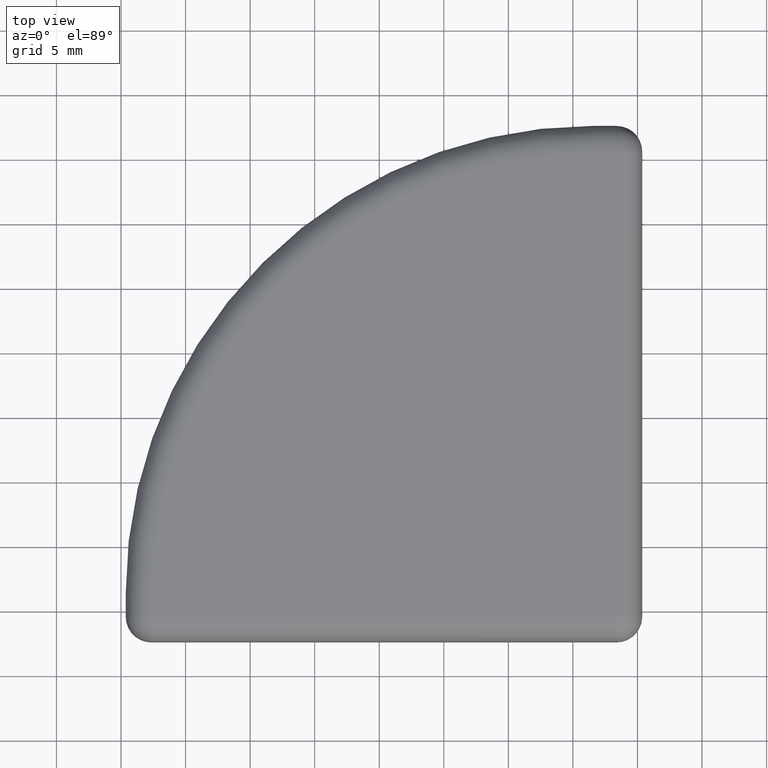
[diagram: clean part render]
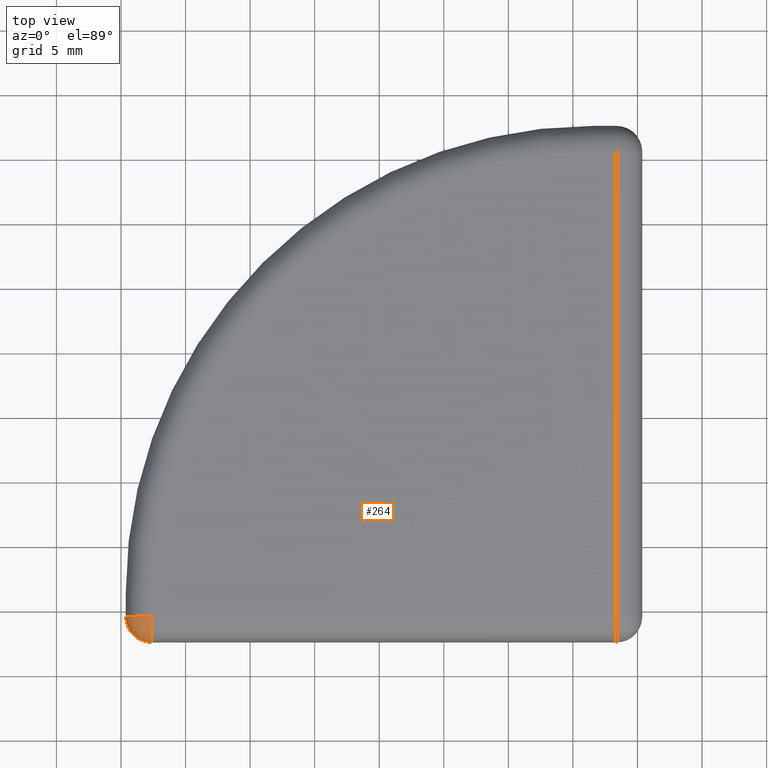
[diagram: same view with one face highlighted and labeled with its STEP entity id]
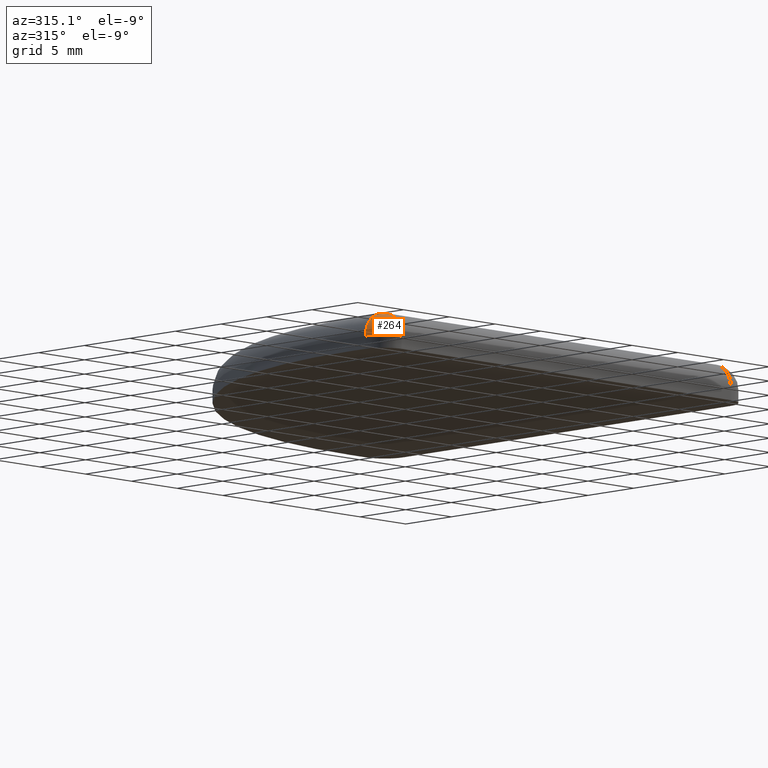
[diagram: same view with one face highlighted and labeled with its STEP entity id]
A machine part, top view. The second image highlights one B-rep face of the part: STEP entity #264.
A second angle (auxiliary view) of the same face is appended — the face is thin or edge-on in the first view.
In plain terms, the highlighted spherical surface has radius 2 mm.
Its self-contained STEP definition (entity closure, byte-faithful):
#22=SPHERICAL_SURFACE('',#316,2.);
#31=FACE_OUTER_BOUND('',#49,.T.);
#49=EDGE_LOOP('',(#199,#200,#201));
#108=CIRCLE('',#310,2.);
#110=CIRCLE('',#314,2.);
#112=CIRCLE('',#317,2.);
#127=VERTEX_POINT('',#451);
#128=VERTEX_POINT('',#452);
#129=VERTEX_POINT('',#459);
#150=EDGE_CURVE('',#127,#128,#108,.T.);
#154=EDGE_CURVE('',#128,#129,#110,.T.);
#158=EDGE_CURVE('',#127,#129,#112,.T.);
#199=ORIENTED_EDGE('',*,*,#154,.F.);
#200=ORIENTED_EDGE('',*,*,#150,.F.);
#201=ORIENTED_EDGE('',*,*,#158,.T.);
#264=ADVANCED_FACE('',(#31),#22,.T.);
#310=AXIS2_PLACEMENT_3D('',#453,#362,#363);
#314=AXIS2_PLACEMENT_3D('',#460,#372,#373);
#316=AXIS2_PLACEMENT_3D('',#465,#378,#379);
#317=AXIS2_PLACEMENT_3D('',#466,#380,#381);
#362=DIRECTION('center_axis',(1.27675647831893E-13,1.,0.));
#363=DIRECTION('ref_axis',(-1.,1.27675647831893E-13,0.));
#372=DIRECTION('center_axis',(1.,0.,0.));
#373=DIRECTION('ref_axis',(0.,0.,1.));
#378=DIRECTION('center_axis',(-0.816496580927743,0.408248290463872,-0.40824829046382));
#379=DIRECTION('ref_axis',(-0.577350269189602,-0.577350269189675,0.577350269189601));
#380=DIRECTION('center_axis',(0.,0.,1.));
#381=DIRECTION('ref_axis',(-1.,0.,0.));
#451=CARTESIAN_POINT('',(5.36920193807327,4.63083275760073,1.));
#452=CARTESIAN_POINT('',(7.36920193807327,4.63083275760047,3.));
#453=CARTESIAN_POINT('Origin',(7.36920193807327,4.63083275760047,1.));
#459=CARTESIAN_POINT('',(7.36920193807328,2.63083275760073,1.));
#460=CARTESIAN_POINT('Origin',(7.36920193807328,4.63083275760073,1.));
#465=CARTESIAN_POINT('Origin',(7.36920193807328,4.63083275760073,1.));
#466=CARTESIAN_POINT('Origin',(7.36920193807328,4.63083275760073,1.));